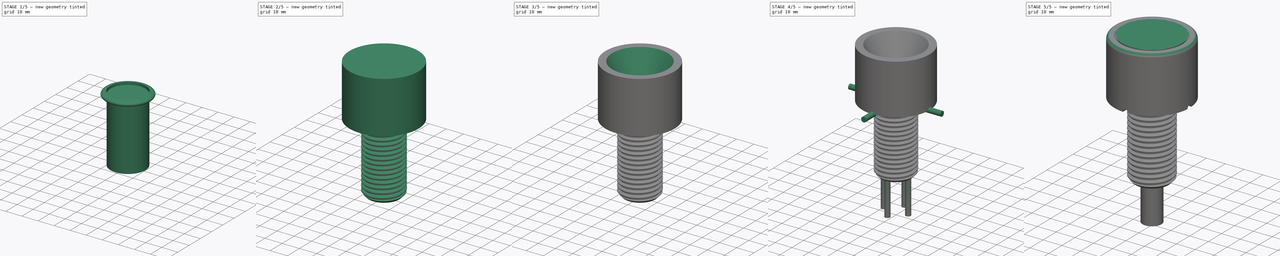
[diagram: build sequence overview — one tinted view per stage of 5, left to right]
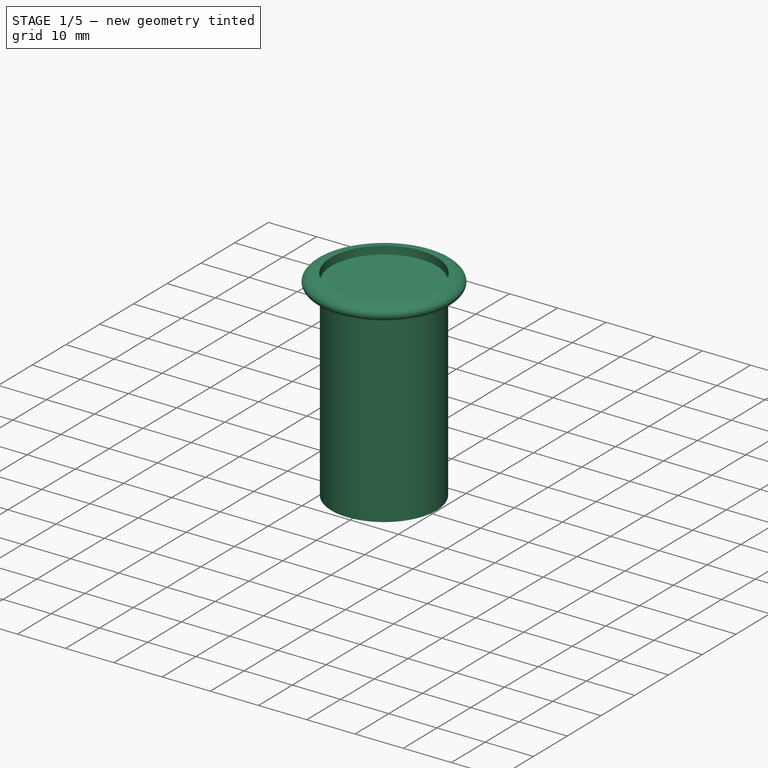
[diagram: stage 1 of 5 — iso view after this stage's code; geometry added in this stage tinted green]
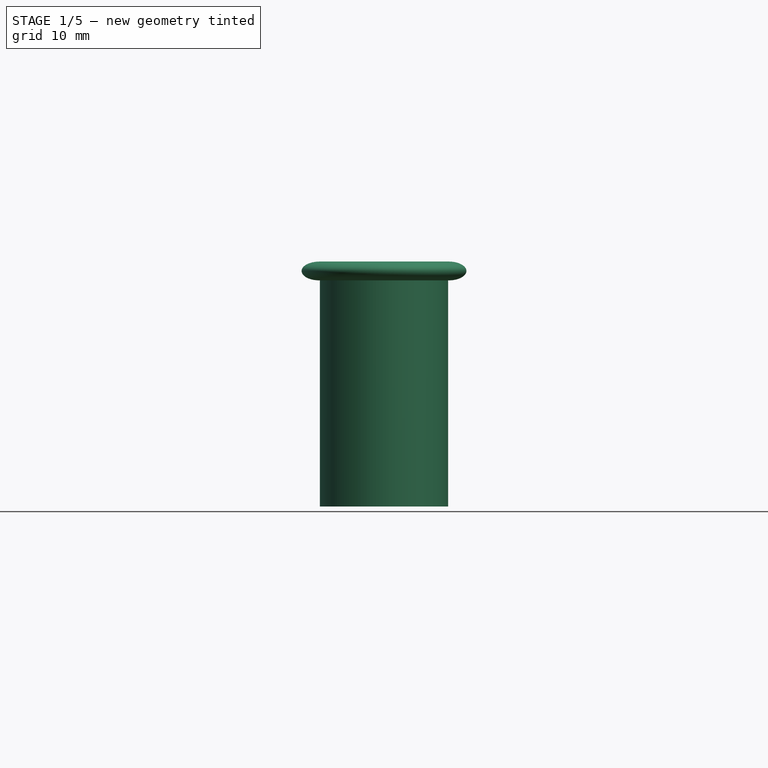
[diagram: stage 1 of 5 — front view after this stage's code; geometry added in this stage tinted green]
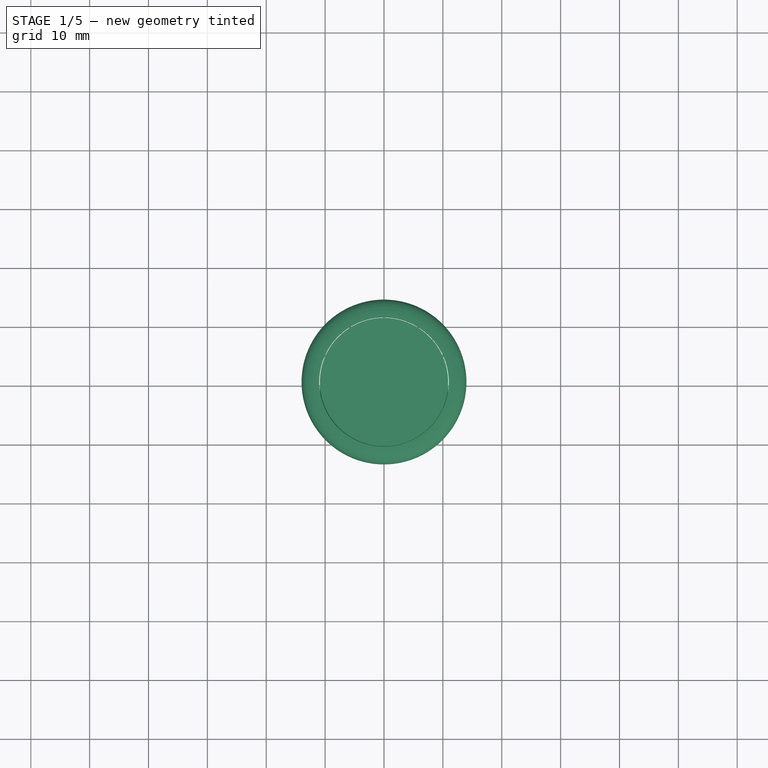
[diagram: stage 1 of 5 — top view after this stage's code; geometry added in this stage tinted green]
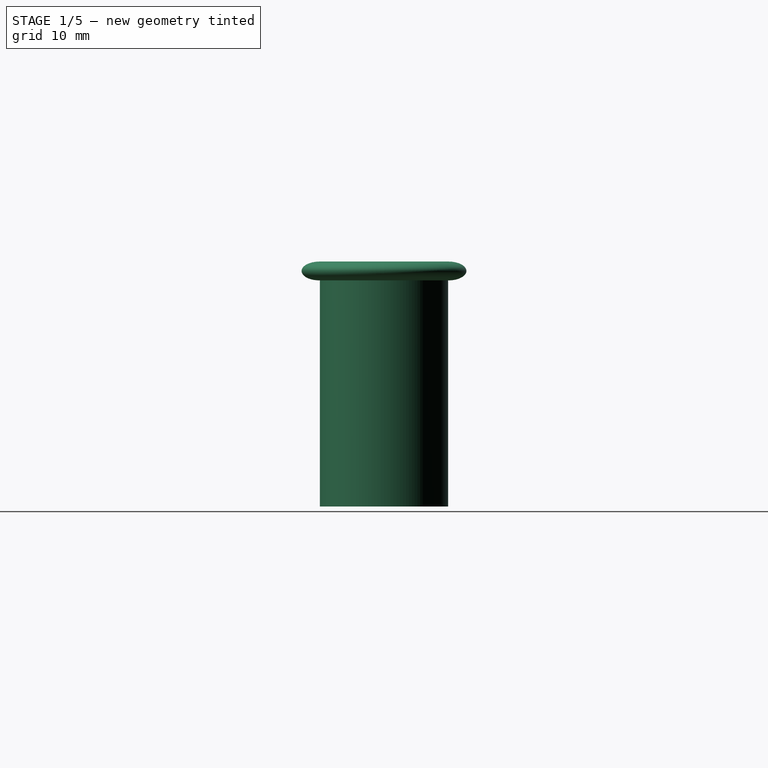
[diagram: stage 1 of 5 — right view after this stage's code; geometry added in this stage tinted green]
FCSTD DOCUMENT  (FreeCAD 0.16R6712 (Git))
Label: threaded_standpipe_22mm_quadribble
License: CreativeCommons Attribution-ShareAlike
LicenseURL: http://creativecommons.org/licenses/by-sa/4.0/
objects: Sketcher::SketchObject×6, Part::Cut×5, Part::Cylinder×3, PartDesign::Fillet×3, Part::Sweep×3, Part::MultiFuse×3, PartDesign::Revolution×1, Part::Feature×1, PartDesign::Chamfer×1, PartDesign::Pad×1, Part::Sphere×1, Part::FeaturePython×1, Part::Circle×1
note: 32 computed .brp shape members not serialized (recipe doc carries the construction recipe); baked Part::Feature solids carry a one-line shape summary decoded from their .brp

FEATURE [Part::Cylinder] Cylinder001  label="Cylinder"
  Angle = 360
  Height = 40
  Placement = pos=(0,0,-40) rot=(0,0,1;0rad)
  Radius = 10.9
FEATURE [Part::Cylinder] Cylinder002  label="Cylinder001"
  Angle = 360
  Height = 10
  Placement = pos=(0,0,-5) rot=(0,0,1;0rad)
  Radius = 11
FEATURE [Sketcher::SketchObject] Sketch006
  Placement = pos=(0,0,0) rot=(1,0,0;1.5708rad)
  sketch-geometry (4):
    g0: Ellipse CenterX=11 CenterY=0 CenterZ=0 NormalX=0 NormalY=0 NormalZ=1 MajorRadius=3 MinorRadius=1.6 AngleXU=0
    g1: LineSegment [constr] StartX=14 StartY=0 StartZ=0 EndX=8 EndY=0 EndZ=0
    g2: LineSegment [constr] StartX=11 StartY=1.6 StartZ=0 EndX=11 EndY=-1.6 EndZ=0
    g3: GeomPoint [constr] X=8.46228 Y=0 Z=0
  constraints (8):
    c: InternalAlignment(g1,g0)
    c: InternalAlignment(g2,g0)
    c: InternalAlignment(g3,g0)
    c: PointOnObject(g0,g-1)
    c: PointOnObject(g3,g-1)
    c: DistanceX(g0,g1) = 3
    c: DistanceX(g-1,g0) = 11
    c: DistanceY(g0,g2) = 1.6
FEATURE [Part::Circle] Circle
  Angle0 = 0
  Angle1 = 360
  Radius = 11
FEATURE [Part::Sweep] Sweep002
  Frenet = false
  Sections = -> [Sketch006]
  Solid = true
  Spine = -> Circle [Edge1]
  Transition = 1
FEATURE [Part::Cut] Cut007  label="O-ring"
  Base = -> Sweep002
  Tool = -> Cylinder002
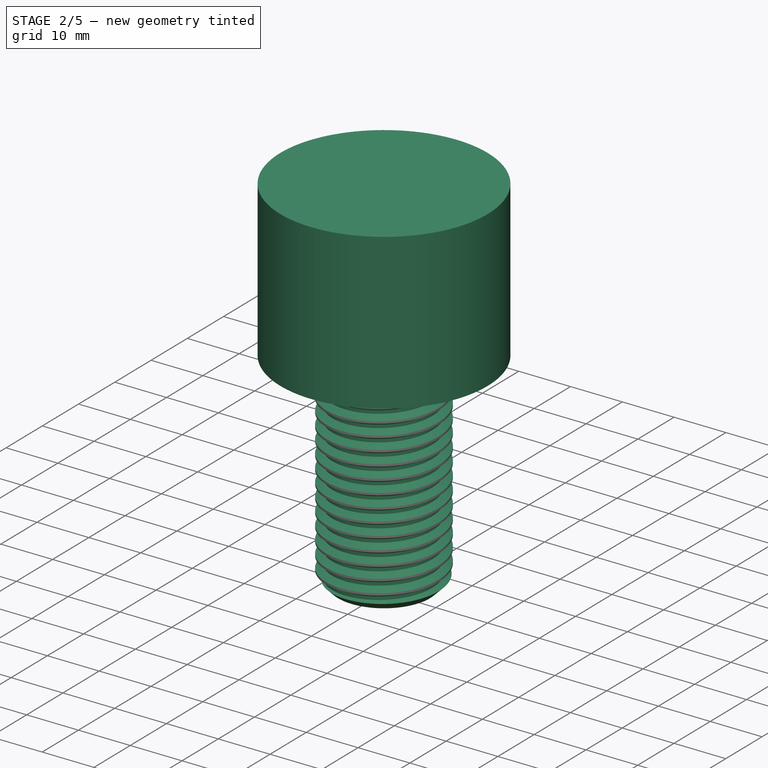
[diagram: stage 2 of 5 — iso view after this stage's code; geometry added in this stage tinted green]
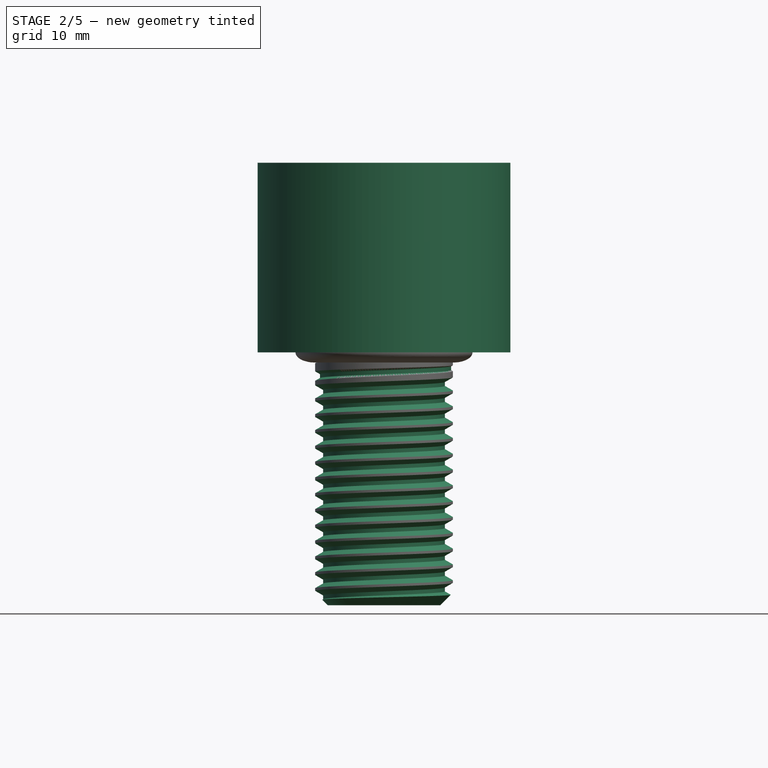
[diagram: stage 2 of 5 — front view after this stage's code; geometry added in this stage tinted green]
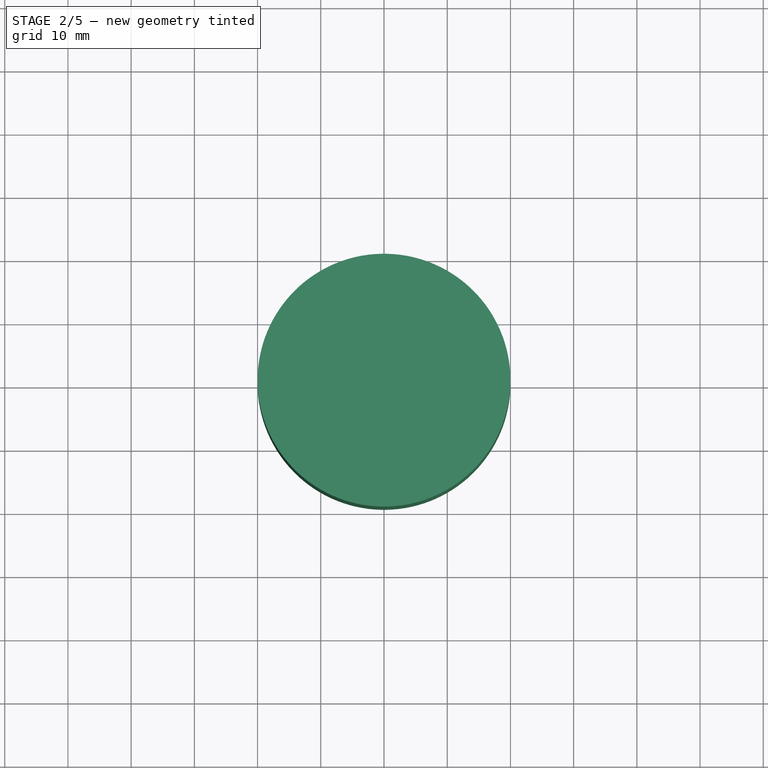
[diagram: stage 2 of 5 — top view after this stage's code; geometry added in this stage tinted green]
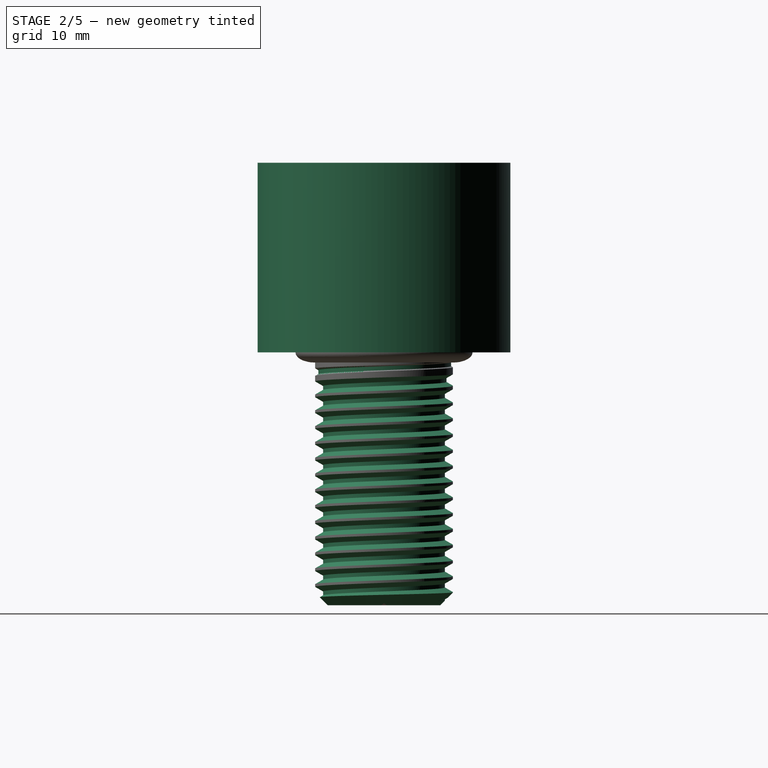
[diagram: stage 2 of 5 — right view after this stage's code; geometry added in this stage tinted green]
FEATURE [Part::Cylinder] Cylinder  label="outer_part"
  Angle = 360
  Height = 30
  Radius = 20
FEATURE [Part::Feature] Shape
  shape: bbox 24 x 24 x 45 mm, 0 faces, 0 solids (baked)
FEATURE [Sketcher::SketchObject] Sketch002
  Placement = pos=(0,0,0) rot=(1,0,0;1.5708rad)
  sketch-geometry (4):
    g0: LineSegment StartX=9.62683 StartY=0.3125 StartZ=0 EndX=9.62683 EndY=-0.3125 EndZ=0
    g1: LineSegment StartX=9.62683 StartY=-0.3125 StartZ=0 EndX=10.98 EndY=-1.09375 EndZ=0
    g2: LineSegment StartX=10.98 StartY=-1.09375 StartZ=0 EndX=10.98 EndY=1.09375 EndZ=0
    g3: LineSegment StartX=10.98 StartY=1.09375 StartZ=0 EndX=9.62683 EndY=0.3125 EndZ=0
  constraints (12):
    c: Vertical(g0)
    c: Coincident(g0,g1)
    c: Coincident(g1,g2)
    c: Vertical(g2)
    c: Coincident(g2,g3)
    c: Coincident(g3,g0)
    c: Symmetric(g0,g0,g-1)
    c: Symmetric(g2,g1,g-1)
    c: Angle(g1,g3) = 1.0472
    c: DistanceX(g0,g1) = 1.35317
    c: DistanceY(g0,g0) = 0.625
    c: DistanceX(g-1,g1) = 10.98
FEATURE [Part::Sweep] Sweep
  Frenet = true
  Placement = pos=(0,0,-45) rot=(0,0,1;0rad)
  Sections = -> [Sketch002]
  Solid = true
  Spine = -> Shape [Edge1]
  Transition = 1
FEATURE [PartDesign::Chamfer] Chamfer
  Base = -> Cylinder001 [Edge3]
  Placement = pos=(0,0,-40) rot=(0,0,1;0rad)
  Size = 2
FEATURE [Part::Cut] Cut  label="threads"
  Base = -> Chamfer
  Tool = -> Sweep
FEATURE [Part::MultiFuse] Fusion002
  Shapes = -> [Cylinder,Cut]
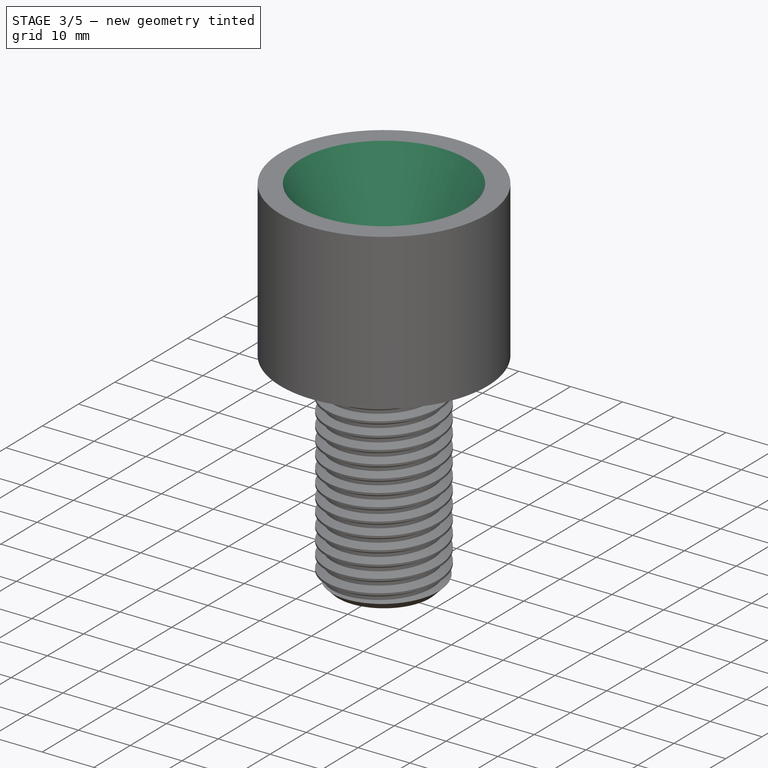
[diagram: stage 3 of 5 — iso view after this stage's code; geometry added in this stage tinted green]
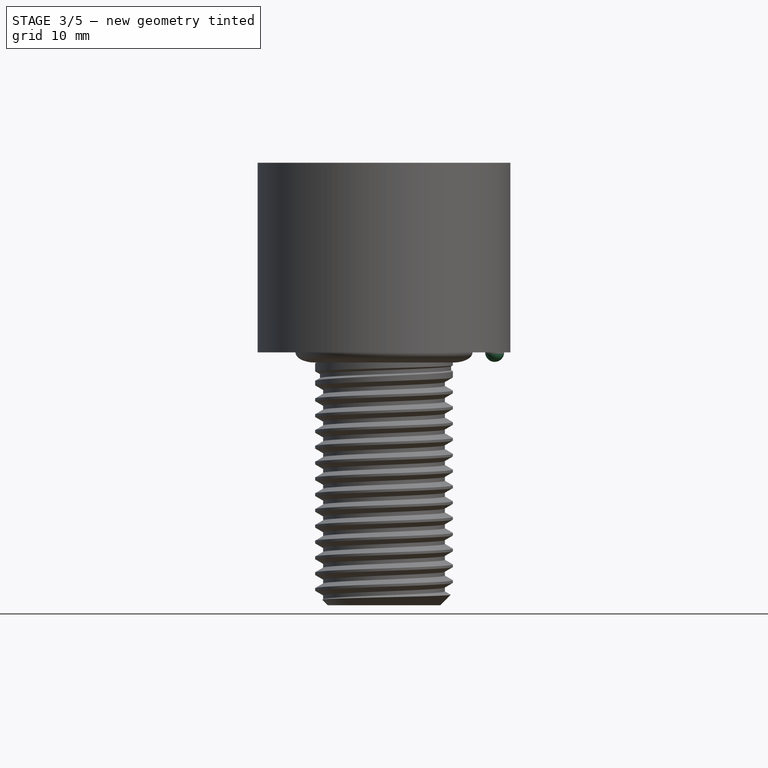
[diagram: stage 3 of 5 — front view after this stage's code; geometry added in this stage tinted green]
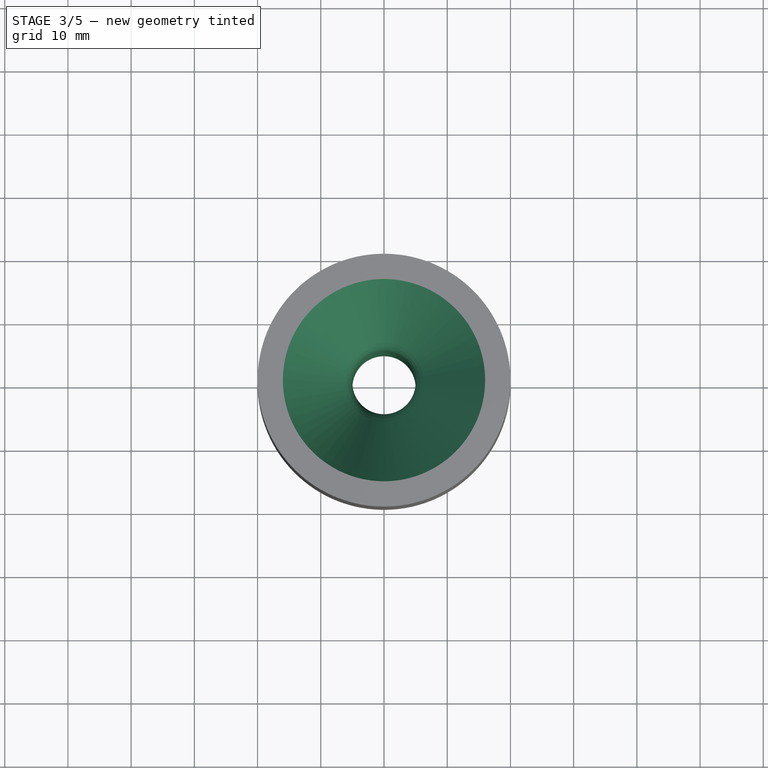
[diagram: stage 3 of 5 — top view after this stage's code; geometry added in this stage tinted green]
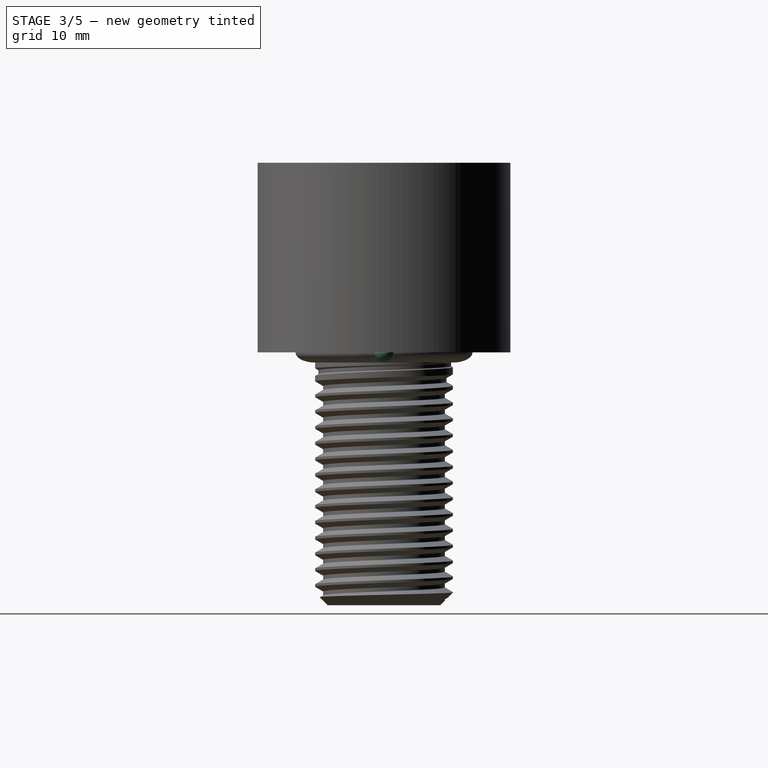
[diagram: stage 3 of 5 — right view after this stage's code; geometry added in this stage tinted green]
FEATURE [Sketcher::SketchObject] Sketch  label="cut_shape"
  Placement = pos=(0,0,0) rot=(1,0,0;1.5708rad)
  expr: Constraints[18] = outer_part.Height * 0.33
  expr: Constraints[10] = outer_part.Height
  expr: Constraints[11] = outer_part.Radius - 4mm
  sketch-geometry (6):
    g0: LineSegment StartX=-16 StartY=30 StartZ=0 EndX=-5 EndY=9.9 EndZ=0
    g1: LineSegment StartX=-5 StartY=9.9 StartZ=0 EndX=-5 EndY=-60 EndZ=0
    g2: LineSegment StartX=-5 StartY=-60 StartZ=0 EndX=0 EndY=-60 EndZ=0
    g3: LineSegment StartX=0 StartY=-60 StartZ=0 EndX=0 EndY=30 EndZ=0
    g4: LineSegment StartX=0 StartY=30 StartZ=0 EndX=-16 EndY=30 EndZ=0
    g5: LineSegment [constr] StartX=-5 StartY=9.9 StartZ=0 EndX=0 EndY=9.9 EndZ=0
  constraints (19):
    c: Coincident(g0,g1)
    c: Vertical(g1)
    c: Coincident(g1,g2)
    c: PointOnObject(g2,g-2)
    c: Horizontal(g2)
    c: Coincident(g2,g3)
    c: PointOnObject(g3,g-2)
    c: Coincident(g3,g4)
    c: Coincident(g0,g4)
    c: Horizontal(g4)
    c: DistanceY(g-1,g3) = 30
    c: DistanceX(g0,g3) = 16
    c: Coincident(g5,g0)
    c: PointOnObject(g5,g3)
    c: Horizontal(g5)
    c: Equal(g5,g2)
    c: DistanceX(g5,g5) = 5  'pipe_r'
    c: DistanceY(g2,g-1) = 60
    c: DistanceY(g-1,g0) = 9.9
FEATURE [PartDesign::Revolution] Revolution
  Angle = 360
  Axis = (0,0,1)
  Base = (0,0,0)
  Placement = pos=(0,0,0) rot=(1,0,0;1.5708rad)
  ReferenceAxis = -> Sketch [V_Axis]
  Sketch = -> Sketch
FEATURE [PartDesign::Fillet] Fillet001  label="funnel"
  Base = -> Revolution [Edge2]
  Placement = pos=(0,0,0) rot=(1,0,0;1.5708rad)
  Radius = 10
  expr: Radius = cut_shape.Constraints.pipe_r * 2
FEATURE [Part::Sphere] Sphere
  Angle1 = -90
  Angle2 = 90
  Angle3 = 360
  Placement = pos=(17.5,0,0) rot=(0,0,1;0rad)
  Radius = 1.5
  expr: Radius = Sketch004.Constraints.dribble_r
FEATURE [Part::Cut] Cut005
  Base = -> Fusion002
  Tool = -> Fillet001
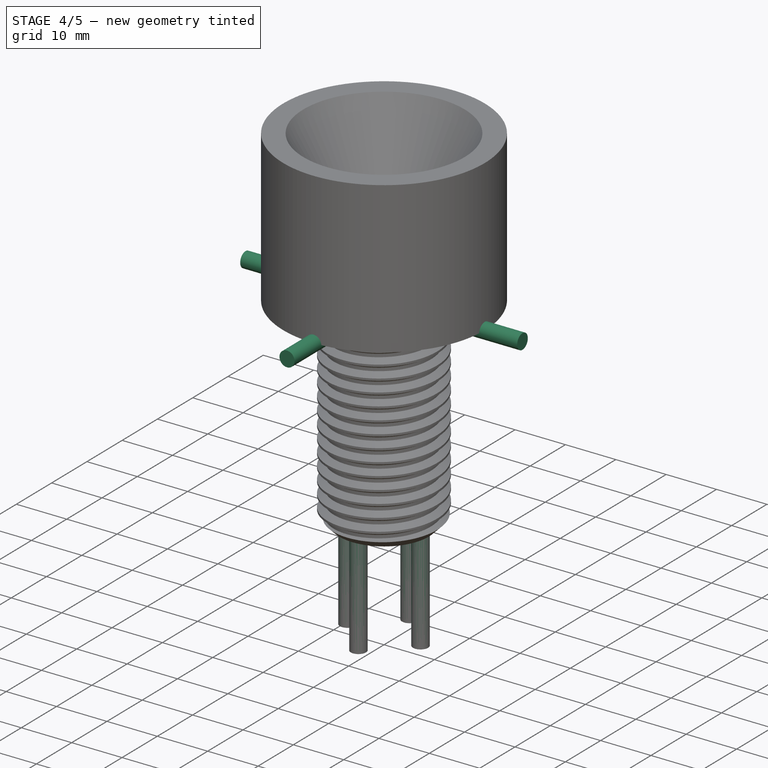
[diagram: stage 4 of 5 — iso view after this stage's code; geometry added in this stage tinted green]
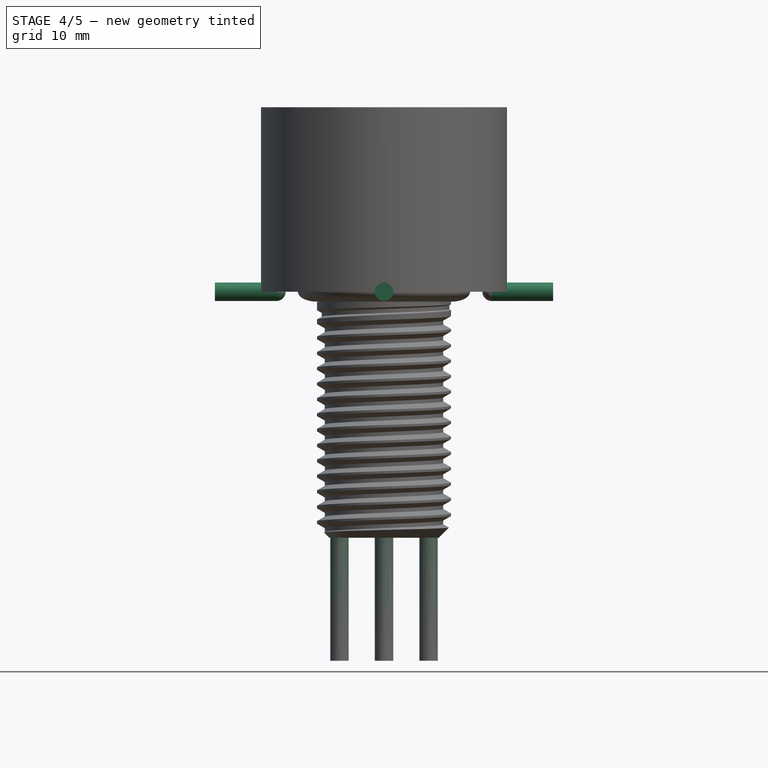
[diagram: stage 4 of 5 — front view after this stage's code; geometry added in this stage tinted green]
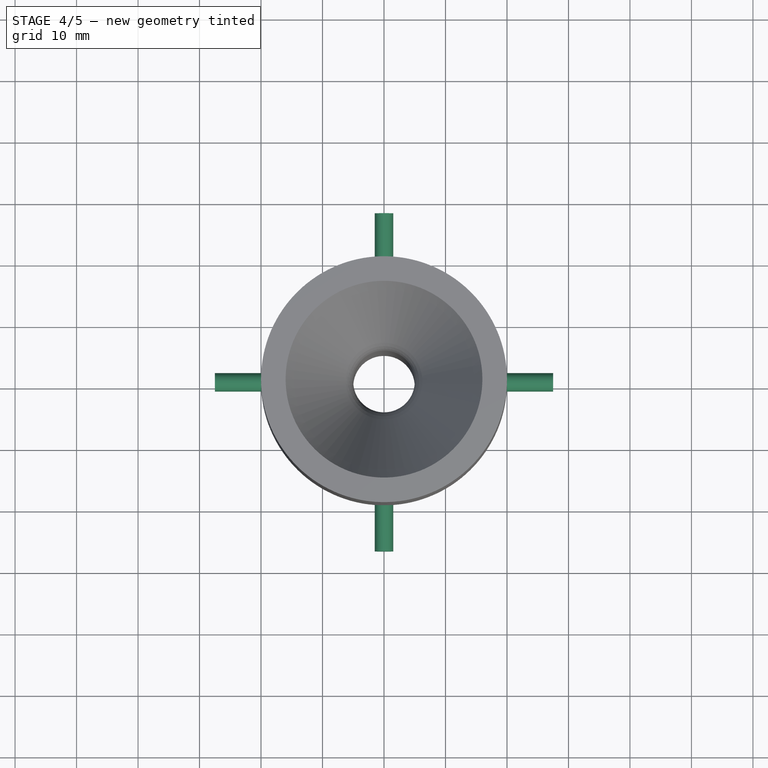
[diagram: stage 4 of 5 — top view after this stage's code; geometry added in this stage tinted green]
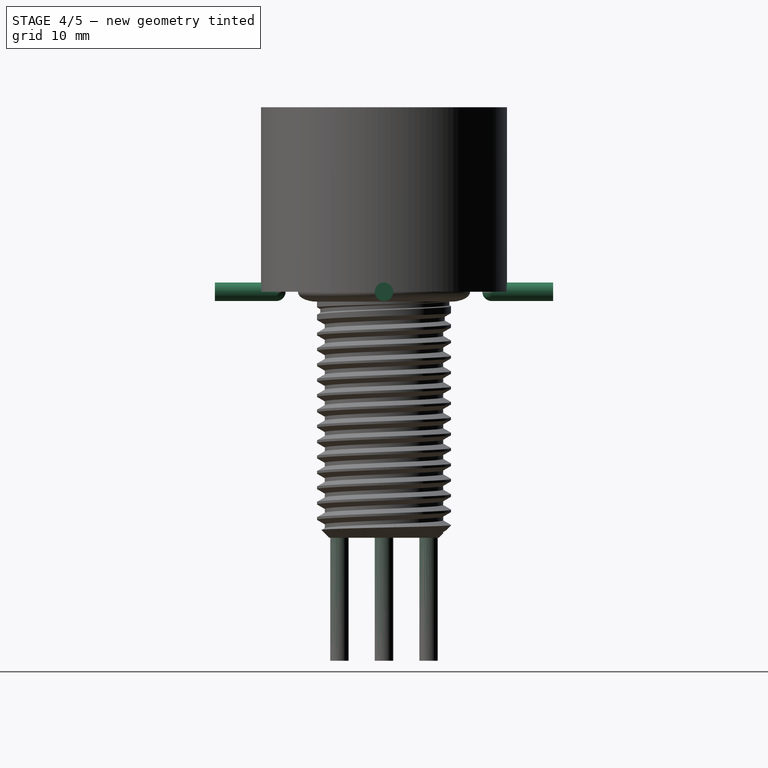
[diagram: stage 4 of 5 — right view after this stage's code; geometry added in this stage tinted green]
FEATURE [Sketcher::SketchObject] Sketch003
  Placement = pos=(0,0,0) rot=(1,0,0;1.5708rad)
  sketch-geometry (8):
    g0: LineSegment StartX=7.25 StartY=-60 StartZ=0 EndX=7.25 EndY=0 EndZ=0
    g1: LineSegment StartX=7.25 StartY=0 StartZ=0 EndX=7.25 EndY=2.875 EndZ=0
    g2: ArcOfCircle CenterX=12.375 CenterY=2.875 CenterZ=0 NormalX=0 NormalY=0 NormalZ=1 Radius=5.125 StartAngle=0 EndAngle=3.14159
    g3: LineSegment StartX=17.5 StartY=2.875 StartZ=0 EndX=17.5 EndY=0 EndZ=0
    g4: LineSegment [constr] StartX=7.25 StartY=2.875 StartZ=0 EndX=17.5 EndY=2.875 EndZ=0
    g5: LineSegment [constr] StartX=7.25 StartY=0 StartZ=0 EndX=17.5 EndY=0 EndZ=0
    g6: LineSegment [constr] StartX=7.25 StartY=8 StartZ=0 EndX=17.5 EndY=8 EndZ=0
    g7: LineSegment [constr] StartX=17.5 StartY=8 StartZ=0 EndX=17.5 EndY=2.875 EndZ=0
  constraints (24):
    c: PointOnObject(g0,g-1)
    c: Vertical(g0)
    c: Coincident(g0,g1)
    c: Vertical(g1)
    c: Tangent(g1,g2) = 1.5708
    c: Coincident(g2,g3)
    c: Vertical(g3)
    c: Coincident(g4,g1)
    c: Coincident(g4,g2)
    c: Horizontal(g4)
    c: Coincident(g5,g0)
    c: Horizontal(g5)
    c: Coincident(g5,g3)
    c: DistanceX(g-1,g0) = 7.25
    c: Horizontal(g6)
    c: Tangent(g6,g2)
    c: Equal(g4,g6)
    c: Coincident(g7,g6)
    c: Vertical(g7)
    c: Coincident(g2,g7)
    c: DistanceY(g-1,g6) = 8
    c: DistanceX(g0,g3) = 10.25
    c: DistanceY(g0,g-1) = 60
    c: Distance(g-1,g3) = 17.5  'dist'
FEATURE [Sketcher::SketchObject] Sketch004
  expr: Constraints[2] = Sketch003.Constraints.dist
  sketch-geometry (1):
    g0: Circle CenterX=17.5 CenterY=0 CenterZ=0 NormalX=0 NormalY=0 NormalZ=1 Radius=1.5
  constraints (3):
    c: PointOnObject(g0,g-1)
    c: Radius(g0) = 1.5  'dribble_r'
    c: DistanceX(g-1,g0) = 17.5
FEATURE [Part::Sweep] Sweep001
  Frenet = true
  Sections = -> [Sketch004]
  Solid = true
  Spine = -> Sketch003
  Transition = 1
FEATURE [Sketcher::SketchObject] Sketch005
  Placement = pos=(17.5,0,0) rot=(0.57735,0.57735,0.57735;2.0944rad)
  expr: Constraints[1] = Sketch004.Constraints.dribble_r
  sketch-geometry (1):
    g0: Circle CenterX=0 CenterY=0 CenterZ=0 NormalX=0 NormalY=0 NormalZ=1 Radius=1.5
  constraints (2):
    c: Coincident(g0,g-1)
    c: Radius(g0) = 1.5
FEATURE [PartDesign::Pad] Pad
  Length = 10
  Length2 = 100
  Placement = pos=(17.5,0,0) rot=(0.57735,0.57735,0.57735;2.0944rad)
  Sketch = -> Sketch005
  Type = 0
FEATURE [Part::MultiFuse] Fusion
  Shapes = -> [Pad,Sphere]
FEATURE [Part::MultiFuse] Fusion001
  Shapes = -> [Sweep001,Fusion]
FEATURE [Part::FeaturePython] Array  # Draft array (typed FeaturePython)
  Angle = 360
  ArrayType = 1
  Axis = (0,0,1)
  Base = -> Fusion001
  Center = (0,0,0)
  Fuse = false
  IntervalAxis = (0,0,0)
  IntervalX = (1,0,0)
  IntervalY = (0,1,0)
  IntervalZ = (0,0,0)
  NumberPolar = 4
  NumberX = 2
  NumberY = 2
  NumberZ = 1
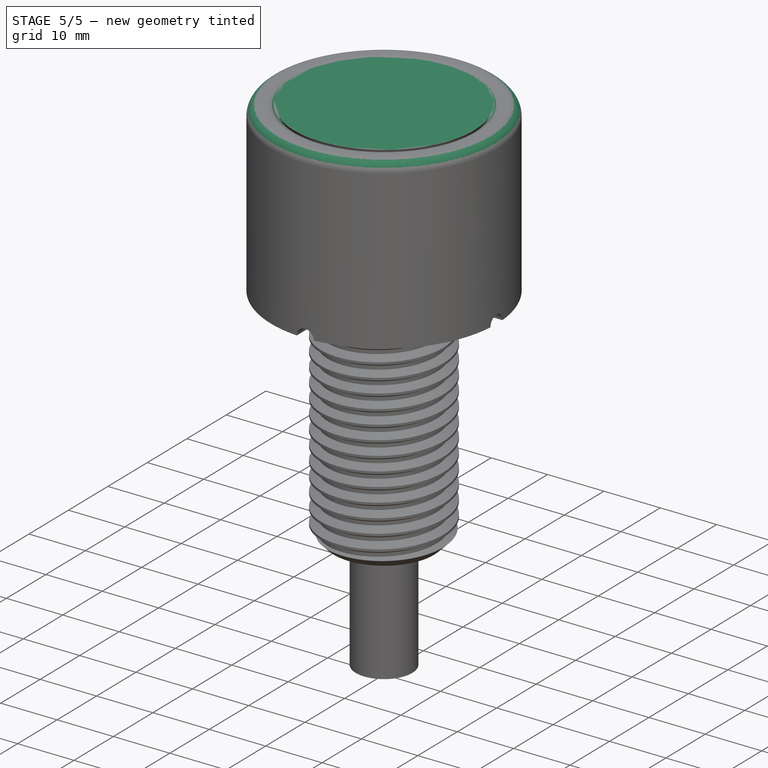
[diagram: stage 5 of 5 — iso view after this stage's code; geometry added in this stage tinted green]
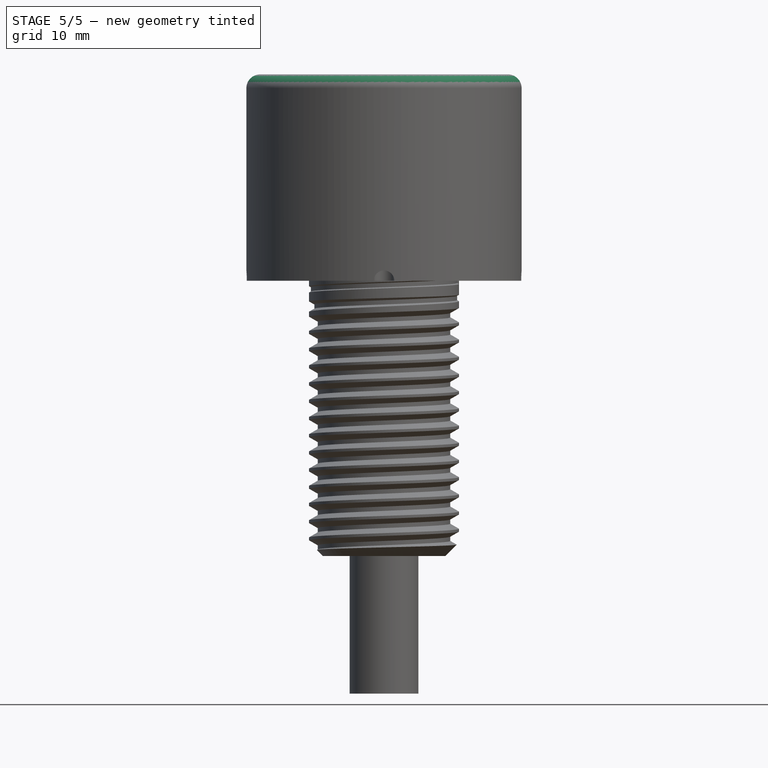
[diagram: stage 5 of 5 — front view after this stage's code; geometry added in this stage tinted green]
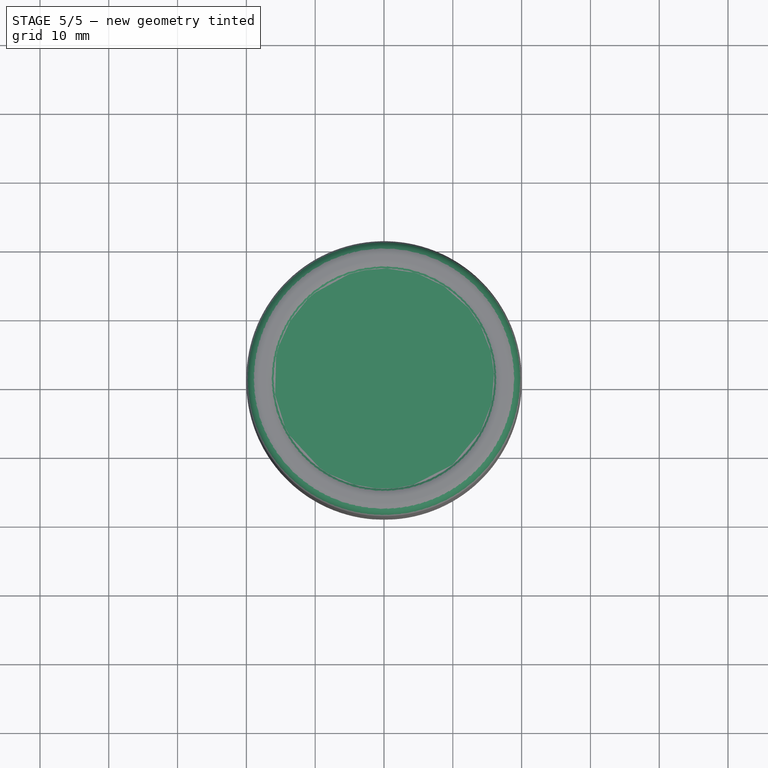
[diagram: stage 5 of 5 — top view after this stage's code; geometry added in this stage tinted green]
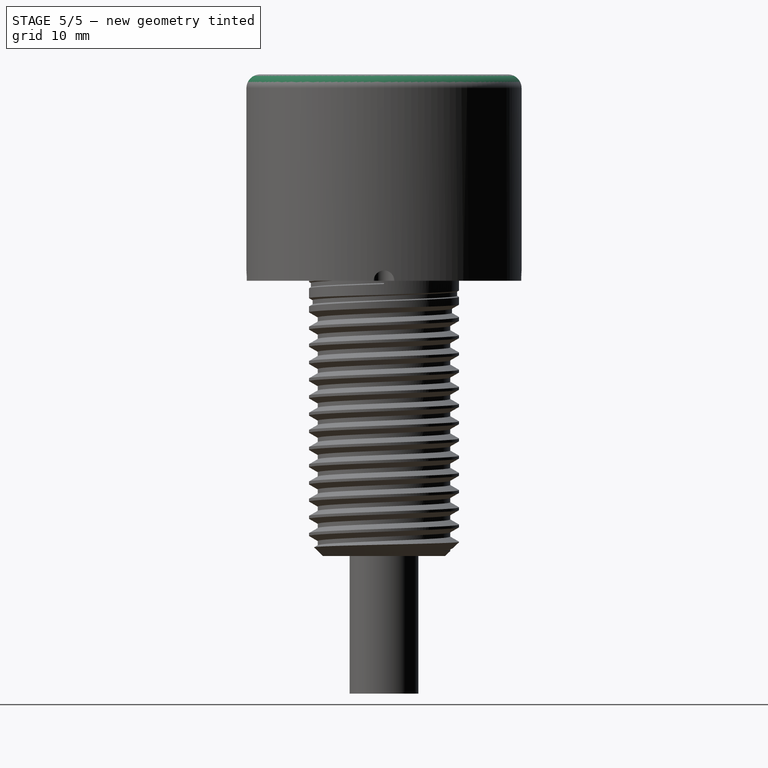
[diagram: stage 5 of 5 — right view after this stage's code; geometry added in this stage tinted green]
FEATURE [PartDesign::Fillet] Fillet
  Base = -> Revolution [Edge2]
  Placement = pos=(0,0,0) rot=(1,0,0;1.5708rad)
  Radius = 10
  expr: Radius = cut_shape.Constraints.pipe_r * 2
FEATURE [Part::Cut] Cut006
  Base = -> Cut005
  Tool = -> Array
FEATURE [Part::Cut] Cut008
  Base = -> Cut006
  Tool = -> Cut007
FEATURE [PartDesign::Fillet] Fillet002
  Base = -> Cut008 [Edge37,Edge15]
  Radius = 2
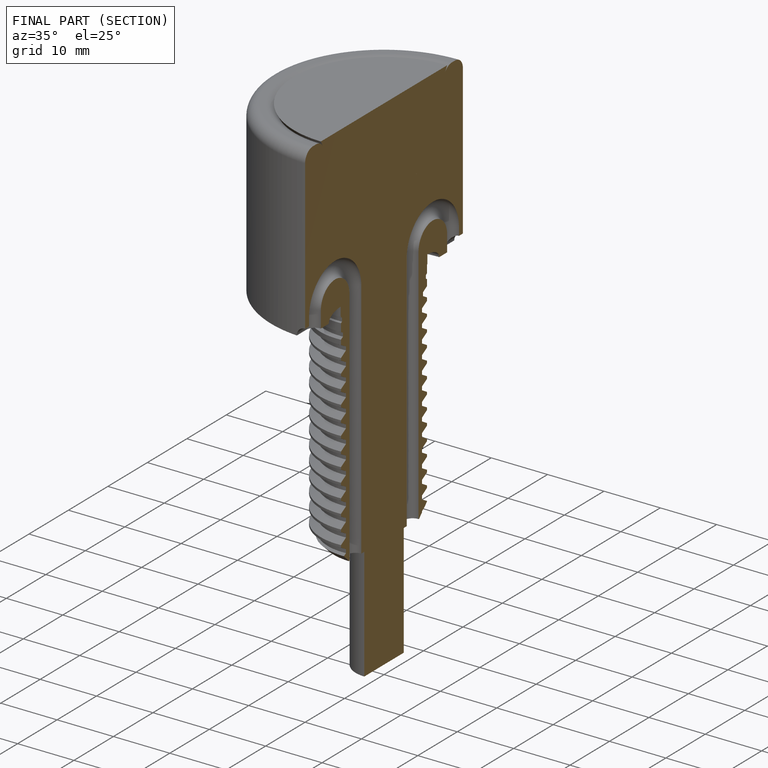
[diagram: finished part — half-section view (interior)]
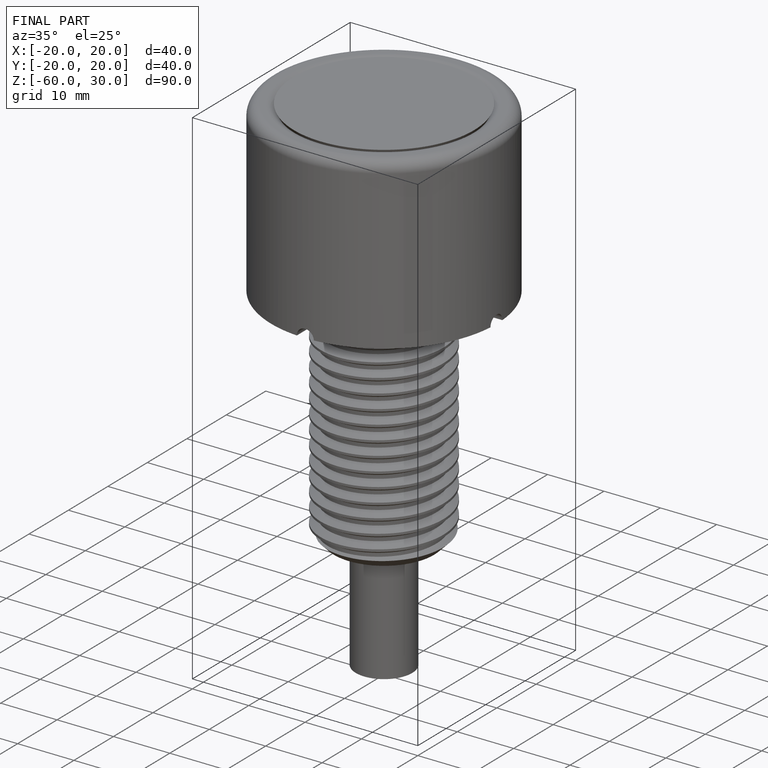
[diagram: finished part — iso view with bounding-box wireframe]
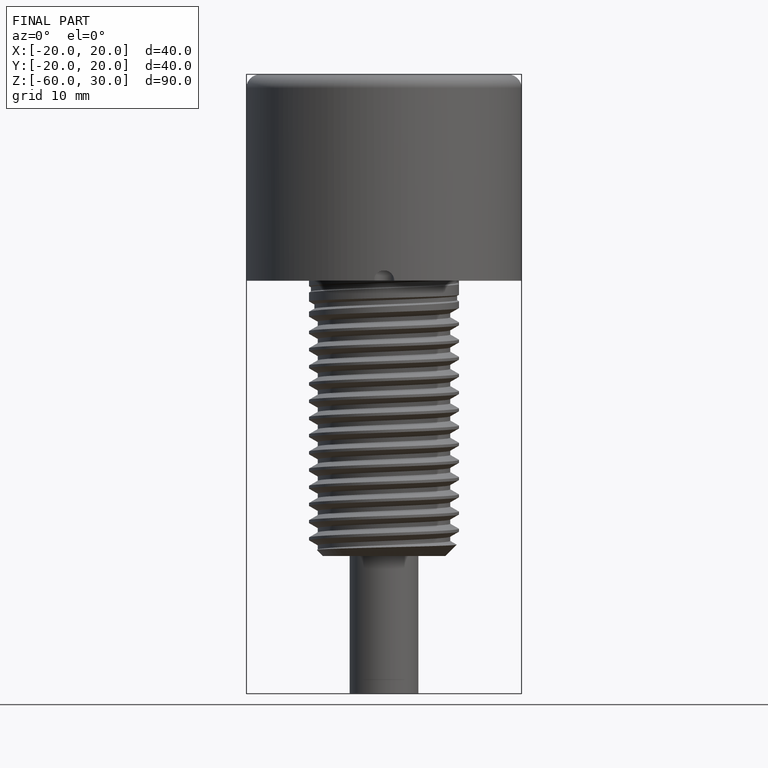
[diagram: finished part — front view with bounding-box wireframe]
